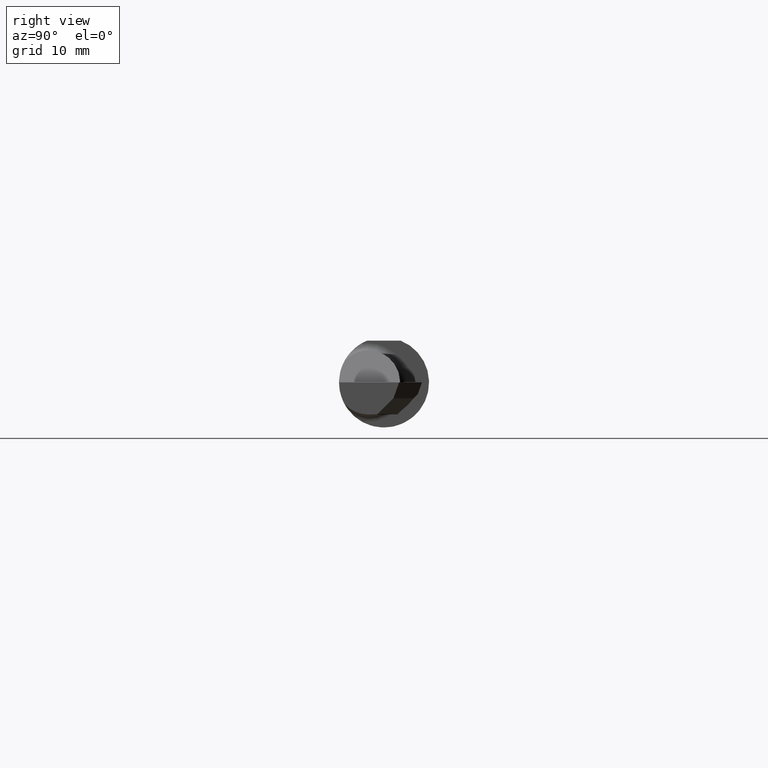
[diagram: clean part render]
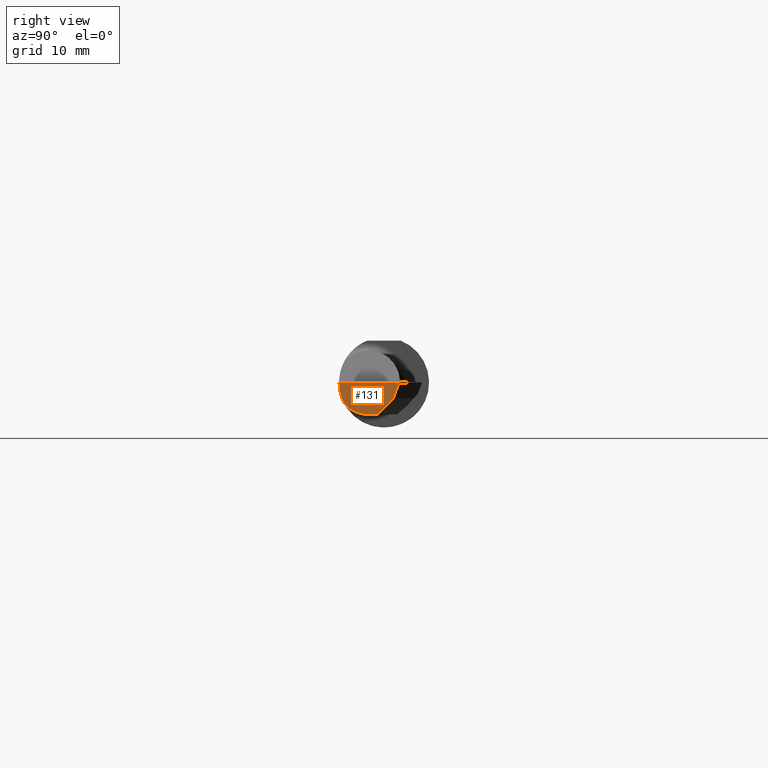
[diagram: same view with one face highlighted and labeled with its STEP entity id]
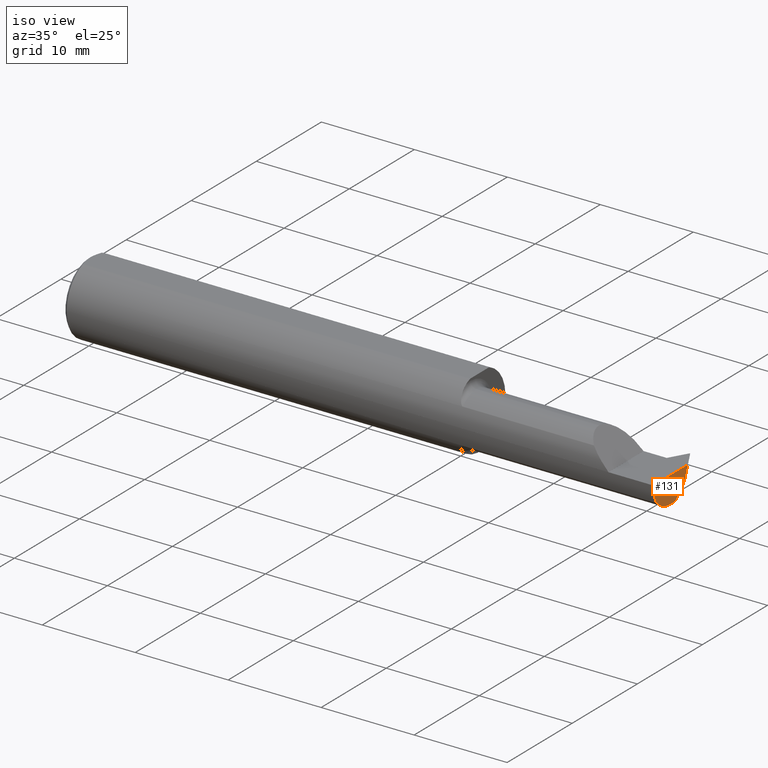
[diagram: same view with one face highlighted and labeled with its STEP entity id]
A machine part, right view. The second image highlights one B-rep face of the part: STEP entity #131.
A second angle (iso view) of the same face is appended — the face is thin or edge-on in the first view.
In plain terms, the highlighted planar face has unit normal (1, 0, 0).
Its self-contained STEP definition (entity closure, byte-faithful):
#8 = CARTESIAN_POINT ( 'NONE',  ( 2.500000000000000000, -0.05510000000000080111, -0.1109999999999999737 ) ) ;
#45 = VERTEX_POINT ( 'NONE', #244 ) ;
#49 = DIRECTION ( 'NONE',  ( 0.000000000000000000, 0.000000000000000000, 1.000000000000000000 ) ) ;
#53 = CARTESIAN_POINT ( 'NONE',  ( 2.500000000000000000, 0.04656774611420267523, -0.01684164052992337748 ) ) ;
#68 = EDGE_CURVE ( 'NONE', #113, #148, #905, .T. ) ;
#75 = LINE ( 'NONE', #533, #294 ) ;
#99 = VERTEX_POINT ( 'NONE', #8 ) ;
#113 = VERTEX_POINT ( 'NONE', #370 ) ;
#131 = ADVANCED_FACE ( 'NONE', ( #817 ), #161, .T. ) ;
#138 = CIRCLE ( 'NONE', #326, 0.1560999999999999888 ) ;
#144 = ORIENTED_EDGE ( 'NONE', *, *, #68, .F. ) ;
#145 = DIRECTION ( 'NONE',  ( -0.000000000000000000, 1.000000000000000000, -7.353467429283449659E-15 ) ) ;
#147 = CARTESIAN_POINT ( 'NONE',  ( 2.500000000000000000, 0.05265867555372412412, 0.000000000000000000 ) ) ;
#148 = VERTEX_POINT ( 'NONE', #147 ) ;
#161 = PLANE ( 'NONE',  #809 ) ;
#167 = DIRECTION ( 'NONE',  ( 0.000000000000000000, 0.000000000000000000, -1.000000000000000000 ) ) ;
#214 = ORIENTED_EDGE ( 'NONE', *, *, #417, .F. ) ;
#233 = CARTESIAN_POINT ( 'NONE',  ( 2.500000000000000000, -0.02323256476686515540, -0.1110000000000001957 ) ) ;
#244 = CARTESIAN_POINT ( 'NONE',  ( 2.500000000000000000, 0.03276743523313500189, -0.05500000000000003497 ) ) ;
#280 = VECTOR ( 'NONE', #622, 39.37007874015748854 ) ;
#292 = VECTOR ( 'NONE', #955, 39.37007874015748854 ) ;
#294 = VECTOR ( 'NONE', #145, 39.37007874015748143 ) ;
#300 = DIRECTION ( 'NONE',  ( -0.000000000000000000, 1.000000000000000000, -0.000000000000000000 ) ) ;
#323 = CARTESIAN_POINT ( 'NONE',  ( 2.500000000000000000, -0.04723256476686502059, -0.1350000000000000644 ) ) ;
#326 = AXIS2_PLACEMENT_3D ( 'NONE', #369, #444, #521 ) ;
#363 = ORIENTED_EDGE ( 'NONE', *, *, #668, .T. ) ;
#369 = CARTESIAN_POINT ( 'NONE',  ( 2.500000000000000000, 0.000000000000000000, 0.000000000000000000 ) ) ;
#370 = CARTESIAN_POINT ( 'NONE',  ( 2.500000000000000000, -0.1560999999999999333, -3.979970649922725226E-17 ) ) ;
#417 = EDGE_CURVE ( 'NONE', #148, #45, #426, .T. ) ;
#426 = LINE ( 'NONE', #53, #292 ) ;
#444 = DIRECTION ( 'NONE',  ( 1.000000000000000000, 0.000000000000000000, 0.000000000000000000 ) ) ;
#476 = CARTESIAN_POINT ( 'NONE',  ( 2.500000000000000000, 0.1749999999999999889, -3.979970649922725226E-17 ) ) ;
#483 = EDGE_CURVE ( 'NONE', #113, #728, #138, .T. ) ;
#515 = CARTESIAN_POINT ( 'NONE',  ( 2.500000000000000000, -0.05509999999999999620, 0.000000000000000000 ) ) ;
#521 = DIRECTION ( 'NONE',  ( 0.000000000000000000, 0.000000000000000000, -1.000000000000000000 ) ) ;
#533 = CARTESIAN_POINT ( 'NONE',  ( 2.500000000000000000, 0.1097552276659281845, -0.1110000000000011811 ) ) ;
#544 = DIRECTION ( 'NONE',  ( 1.000000000000000000, 0.000000000000000000, 0.000000000000000000 ) ) ;
#550 = CIRCLE ( 'NONE', #581, 0.1109999999999999876 ) ;
#557 = ORIENTED_EDGE ( 'NONE', *, *, #796, .T. ) ;
#581 = AXIS2_PLACEMENT_3D ( 'NONE', #515, #863, #49 ) ;
#585 = VERTEX_POINT ( 'NONE', #233 ) ;
#622 = DIRECTION ( 'NONE',  ( 0.000000000000000000, 0.7071067811865474617, 0.7071067811865474617 ) ) ;
#648 = CARTESIAN_POINT ( 'NONE',  ( 2.500000000000000000, -0.1368622504537203854, -0.07507286061382703601 ) ) ;
#668 = EDGE_CURVE ( 'NONE', #585, #45, #694, .T. ) ;
#673 = VECTOR ( 'NONE', #300, 39.37007874015748143 ) ;
#683 = ORIENTED_EDGE ( 'NONE', *, *, #483, .T. ) ;
#694 = LINE ( 'NONE', #323, #280 ) ;
#728 = VERTEX_POINT ( 'NONE', #648 ) ;
#739 = ORIENTED_EDGE ( 'NONE', *, *, #920, .T. ) ;
#796 = EDGE_CURVE ( 'NONE', #728, #99, #550, .T. ) ;
#809 = AXIS2_PLACEMENT_3D ( 'NONE', #839, #544, #167 ) ;
#817 = FACE_OUTER_BOUND ( 'NONE', #875, .T. ) ;
#839 = CARTESIAN_POINT ( 'NONE',  ( 2.500000000000000000, 0.000000000000000000, 0.000000000000000000 ) ) ;
#863 = DIRECTION ( 'NONE',  ( 1.000000000000000000, -0.000000000000000000, -0.000000000000000000 ) ) ;
#875 = EDGE_LOOP ( 'NONE', ( #363, #214, #144, #683, #557, #739 ) ) ;
#905 = LINE ( 'NONE', #476, #673 ) ;
#920 = EDGE_CURVE ( 'NONE', #99, #585, #75, .T. ) ;
#955 = DIRECTION ( 'NONE',  ( 0.000000000000000000, -0.3401001459858862819, -0.9403892229818348047 ) ) ;